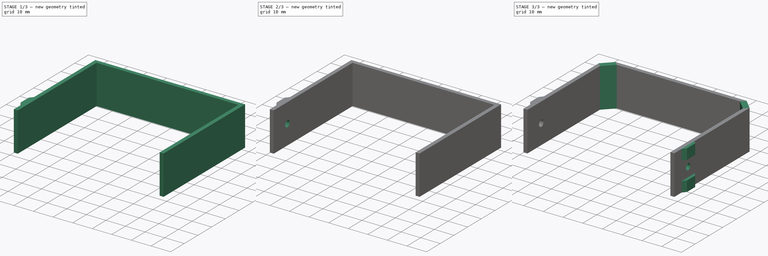
[diagram: build sequence overview — one tinted view per stage of 3, left to right]
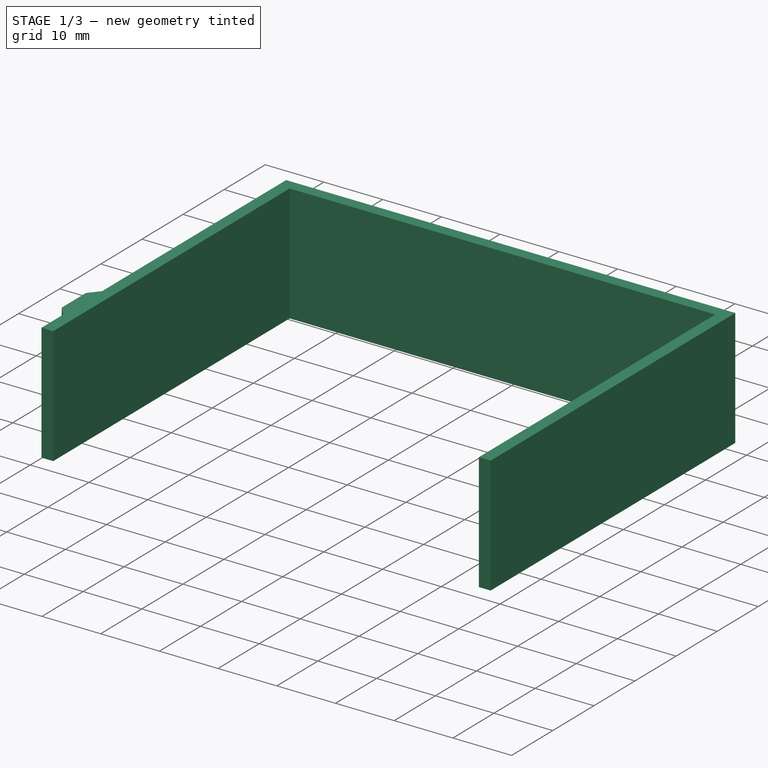
[diagram: stage 1 of 3 — iso view after this stage's code; geometry added in this stage tinted green]
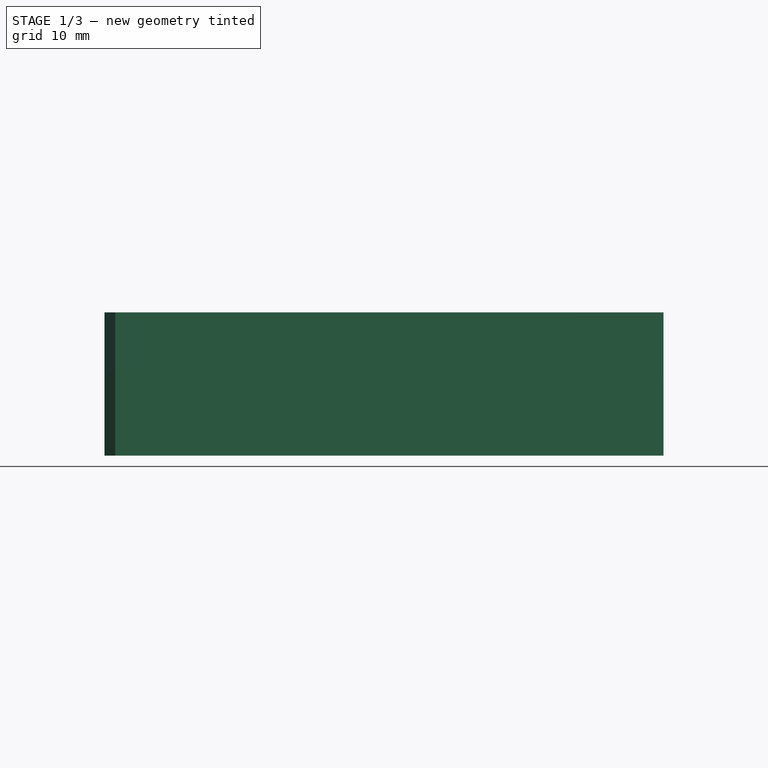
[diagram: stage 1 of 3 — front view after this stage's code; geometry added in this stage tinted green]
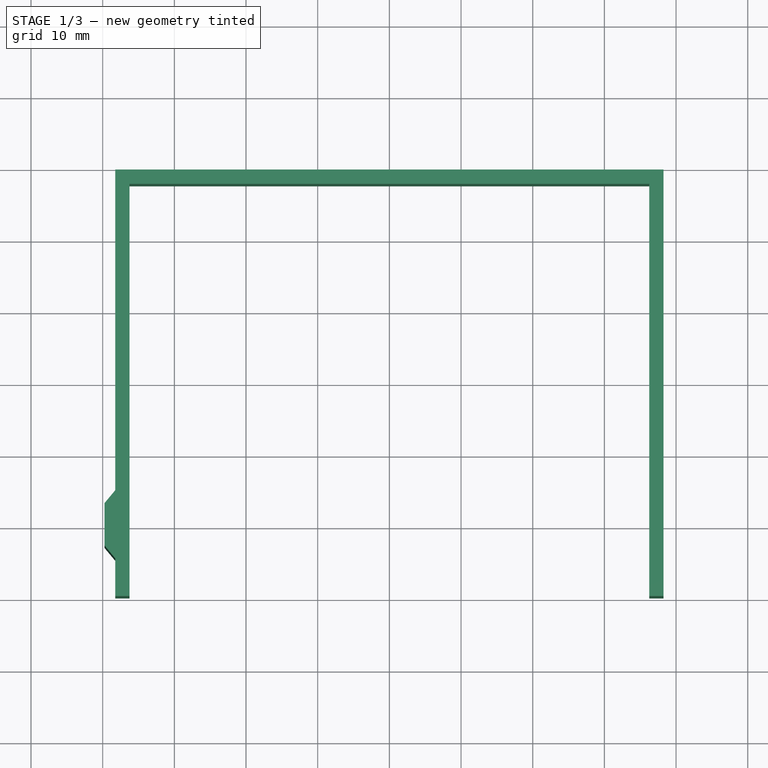
[diagram: stage 1 of 3 — top view after this stage's code; geometry added in this stage tinted green]
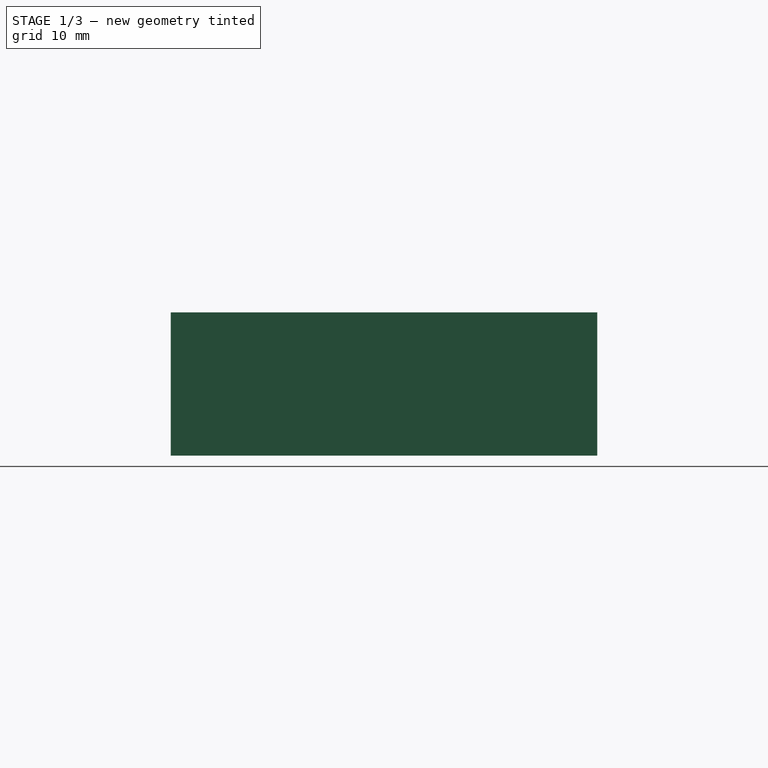
[diagram: stage 1 of 3 — right view after this stage's code; geometry added in this stage tinted green]
FCSTD DOCUMENT  (FreeCAD 0.21R33771 (Git))
Label: suporte-jetson-nano-case
License: All rights reserved
LicenseURL: https://en.wikipedia.org/wiki/All_rights_reserved
objects: Sketcher::SketchObject×4, PartDesign::Pad×2, PartDesign::Pocket×2, PartDesign::Mirrored×1, PartDesign::Chamfer×1, PartDesign::Body×1
note: 16 computed .brp shape members not serialized (recipe doc carries the construction recipe); baked Part::Feature solids carry a one-line shape summary decoded from their .brp

FEATURE [Sketcher::SketchObject] Sketch
  FullyConstrained = true
  MapMode = 5
  Support = -> [XY_Plane]
  sketch-geometry (9):
    g0: LineSegment StartX=-38.25 StartY=-29.75 StartZ=0 EndX=-38.25 EndY=29.75 EndZ=0
    g1: LineSegment StartX=-38.25 StartY=29.75 StartZ=0 EndX=38.25 EndY=29.75 EndZ=0
    g2: LineSegment StartX=38.25 StartY=29.75 StartZ=0 EndX=38.25 EndY=-29.75 EndZ=0
    g3: LineSegment StartX=38.25 StartY=-29.75 StartZ=0 EndX=36.25 EndY=-29.75 EndZ=0
    g4: LineSegment StartX=36.25 StartY=-29.75 StartZ=0 EndX=36.25 EndY=27.75 EndZ=0
    g5: LineSegment StartX=36.25 StartY=27.75 StartZ=0 EndX=-36.25 EndY=27.75 EndZ=0
    g6: LineSegment StartX=-36.25 StartY=27.75 StartZ=0 EndX=-36.25 EndY=-29.75 EndZ=0
    g7: LineSegment StartX=-36.25 StartY=-29.75 StartZ=0 EndX=-38.25 EndY=-29.75 EndZ=0
    g8: LineSegment StartX=-36.25 StartY=27.75 StartZ=0 EndX=-36.25 EndY=29.75 EndZ=0
  constraints (25):
    c: Coincident(g0,g1)
    c: Coincident(g1,g2)
    c: Coincident(g2,g3)
    c: Coincident(g3,g4)
    c: Coincident(g4,g5)
    c: Horizontal(g5)
    c: Coincident(g5,g6)
    c: Coincident(g6,g7)
    c: Coincident(g7,g0)
    c: Horizontal(g7)
    c: Vertical(g6)
    c: Vertical(g4)
    c: Vertical(g2)
    c: Symmetric(g1,g0,g-2)
    c: Symmetric(g0,g0,g-1)
    c: Horizontal(g3)
    c: Coincident(g8,g5)
    c: PointOnObject(g8,g1)
    c: Vertical(g8)
    c: Equal(g3,g7)
    c: Equal(g7,g8)
    c: Equal(g2,g0)
    c: DistanceX(g0,g2) = 76.5
    c: DistanceY(g8,g8) = 2
    c: DistanceY(g6,g5) = 57.5
FEATURE [PartDesign::Pad] Pad
  Direction = (0,0,1)
  Length = 20
  Length2 = 10
  Profile = -> Sketch
  ReferenceAxis = -> Sketch [N_Axis]
  Type = 0
FEATURE [Sketcher::SketchObject] Sketch001
  ExternalGeometry = -> [Pad]
  FullyConstrained = true
  MapMode = 5
  Placement = pos=(0,0,0) rot=(1,0,0;3.14159rad)
  Support = -> [Pad]
  sketch-geometry (6):
    g0: LineSegment StartX=-38.25 StartY=29.75 StartZ=0 EndX=-38.25 EndY=9.75 EndZ=0
    g1: LineSegment StartX=-38.25 StartY=24.5 StartZ=0 EndX=-39.75 EndY=22.7 EndZ=0
    g2: LineSegment StartX=-39.75 StartY=22.7 StartZ=0 EndX=-39.75 EndY=16.8 EndZ=0
    g3: LineSegment StartX=-39.75 StartY=16.8 StartZ=0 EndX=-38.25 EndY=15 EndZ=0
    g4: LineSegment StartX=-38.25 StartY=15 StartZ=0 EndX=-38.25 EndY=24.5 EndZ=0
    g5: LineSegment StartX=-39.75 StartY=19.75 StartZ=0 EndX=-38.25 EndY=19.75 EndZ=0
  constraints (16):
    c: Coincident(g0,g-3)
    c: PointOnObject(g0,g-3)
    c: DistanceY(g0,g0) = 20
    c: Coincident(g1,g2)
    c: Coincident(g2,g3)
    c: Coincident(g3,g4)
    c: Coincident(g4,g1)
    c: PointOnObject(g5,g2)
    c: PointOnObject(g5,g0)
    c: Symmetric(g0,g0,g5)
    c: Symmetric(g1,g3,g5)
    c: Symmetric(g1,g2,g5)
    c: PointOnObject(g1,g0)
    c: DistanceY(g4,g4) = 9.5
    c: DistanceY(g2,g2) = 5.9
    c: DistanceX(g1,g1) = 1.5
FEATURE [PartDesign::Pad] Pad001
  BaseFeature = -> Pad
  Direction = (0,0,-1)
  Length = 10
  Length2 = 10
  Profile = -> Sketch001
  ReferenceAxis = -> Sketch001 [N_Axis]
  Type = 3
  UpToFace = -> Pad [Face10]
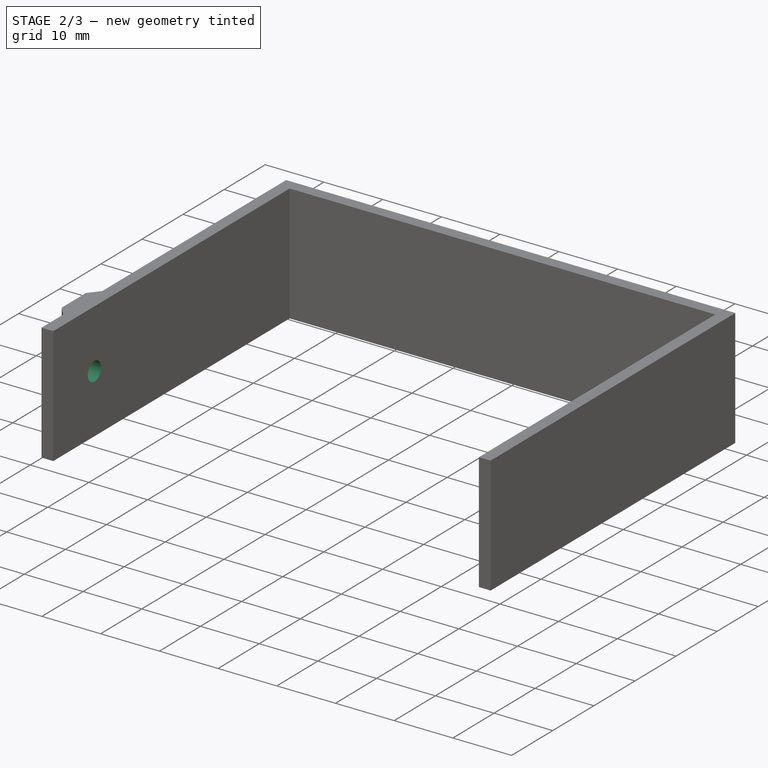
[diagram: stage 2 of 3 — iso view after this stage's code; geometry added in this stage tinted green]
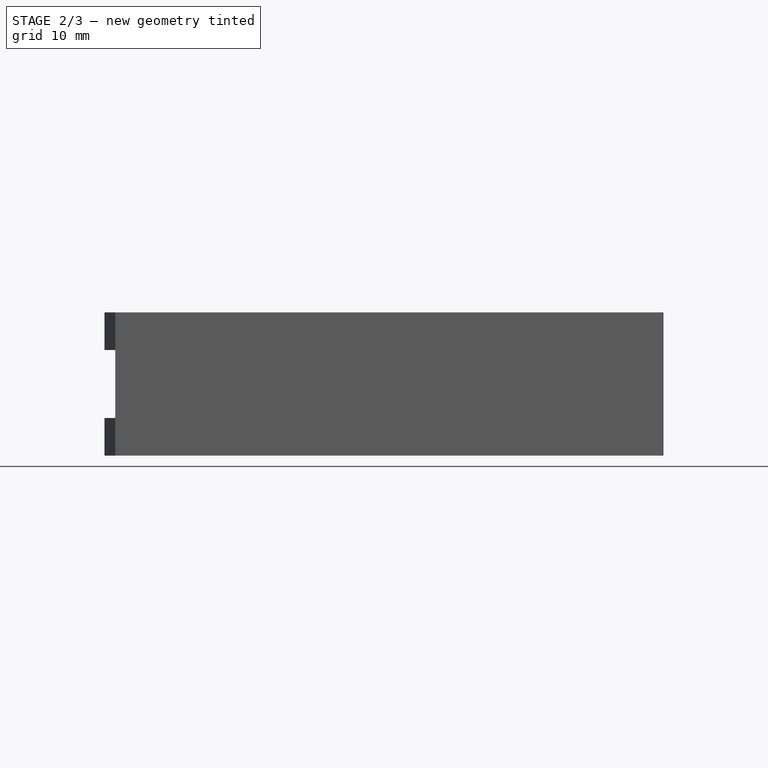
[diagram: stage 2 of 3 — front view after this stage's code; geometry added in this stage tinted green]
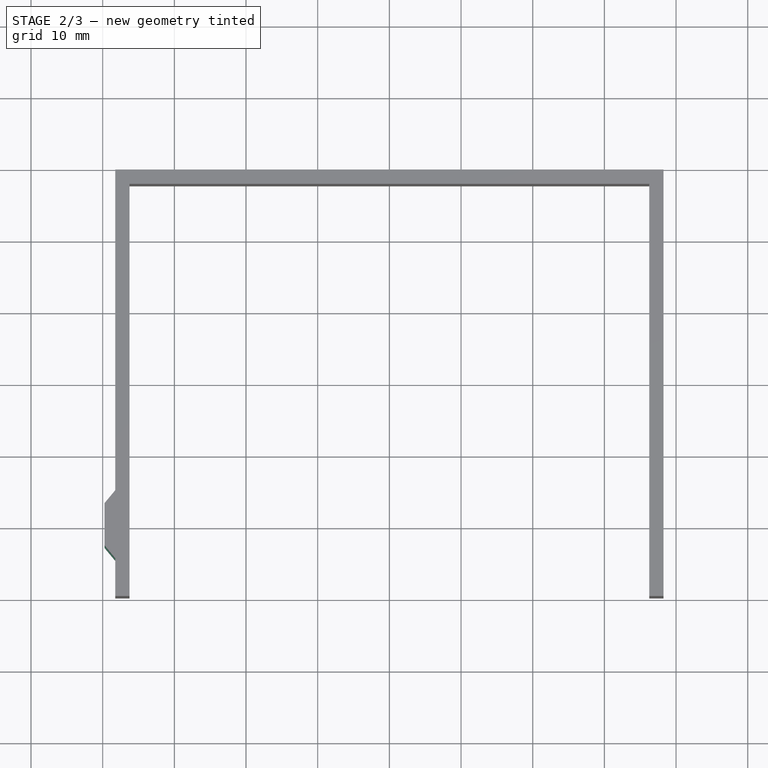
[diagram: stage 2 of 3 — top view after this stage's code; geometry added in this stage tinted green]
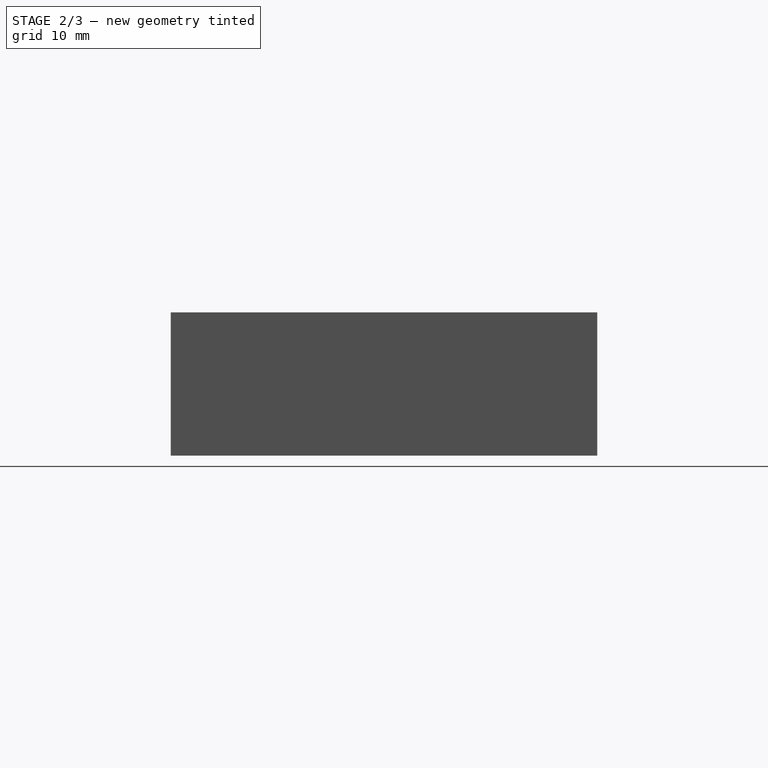
[diagram: stage 2 of 3 — right view after this stage's code; geometry added in this stage tinted green]
FEATURE [Sketcher::SketchObject] Sketch002
  ExternalGeometry = -> [Pad001]
  FullyConstrained = true
  MapMode = 5
  Placement = pos=(-39.75,-3.351e-13,0) rot=(0.57735,-0.57735,-0.57735;2.0944rad)
  Support = -> [Pad001]
  sketch-geometry (3):
    g0: Circle CenterX=19.75 CenterY=10 CenterZ=0 NormalX=0 NormalY=0 NormalZ=1 AngleXU=0 Radius=1.6
    g1: Circle CenterX=19.75 CenterY=10 CenterZ=0 NormalX=0 NormalY=0 NormalZ=1 AngleXU=0 Radius=4.75
    g2: LineSegment StartX=19.75 StartY=10 StartZ=0 EndX=15 EndY=10 EndZ=0
  constraints (7):
    c: Coincident(g1,g0)
    c: Tangent(g1,g-3)
    c: Tangent(g1,g-4)
    c: Coincident(g2,g0)
    c: PointOnObject(g2,g-3)
    c: Symmetric(g-3,g-3,g2)
    c: Diameter(g0) = 3.2
FEATURE [PartDesign::Pocket] Pocket
  BaseFeature = -> Pad001
  Direction = (1,8.4e-15,0)
  Length = 0
  Length2 = 5
  Profile = -> Sketch002
  ReferenceAxis = -> Sketch002 [N_Axis]
  Type = 3
  UpToFace = -> Pad001 [Face13]
FEATURE [Sketcher::SketchObject] Sketch003
  ExternalGeometry = -> [Pocket]
  FullyConstrained = true
  MapMode = 5
  Placement = pos=(-39.75,-3.351e-13,0) rot=(0.57735,-0.57735,-0.57735;2.0944rad)
  Support = -> [Pocket]
  sketch-geometry (5):
    g0: Circle CenterX=19.75 CenterY=10 CenterZ=0 NormalX=0 NormalY=0 NormalZ=1 AngleXU=0 Radius=4.75
    g1: LineSegment StartX=15 StartY=14.75 StartZ=0 EndX=24.5 EndY=14.75 EndZ=0
    g2: LineSegment StartX=24.5 StartY=14.75 StartZ=0 EndX=24.5 EndY=5.25 EndZ=0
    g3: LineSegment StartX=24.5 StartY=5.25 StartZ=0 EndX=15 EndY=5.25 EndZ=0
    g4: LineSegment StartX=15 StartY=5.25 StartZ=0 EndX=15 EndY=14.75 EndZ=0
  constraints (14):
    c: Coincident(g0,g-5)
    c: Tangent(g0,g-3)
    c: Coincident(g1,g2)
    c: Coincident(g2,g3)
    c: Coincident(g3,g4)
    c: Coincident(g4,g1)
    c: Horizontal(g1)
    c: Horizontal(g3)
    c: Vertical(g2)
    c: Vertical(g4)
    c: Tangent(g1,g0)
    c: Tangent(g4,g0)
    c: Tangent(g2,g0)
    c: Tangent(g3,g0)
FEATURE [PartDesign::Pocket] Pocket001
  BaseFeature = -> Pocket
  Direction = (1,8.4e-15,0)
  Length = 0
  Length2 = 5
  Profile = -> Sketch003
  ReferenceAxis = -> Sketch003 [N_Axis]
  Type = 3
  UpToFace = -> Pocket [Face7]
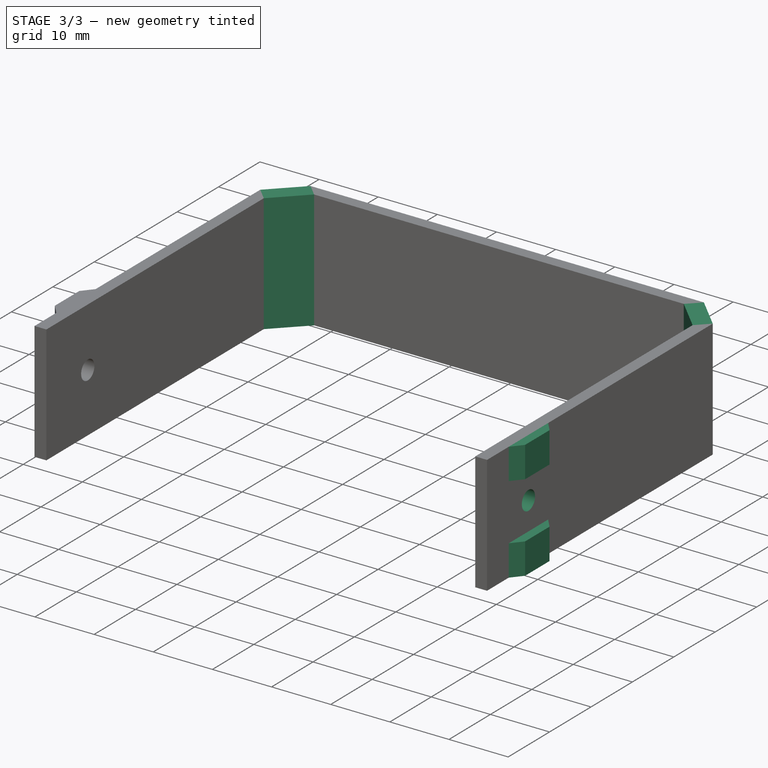
[diagram: stage 3 of 3 — iso view after this stage's code; geometry added in this stage tinted green]
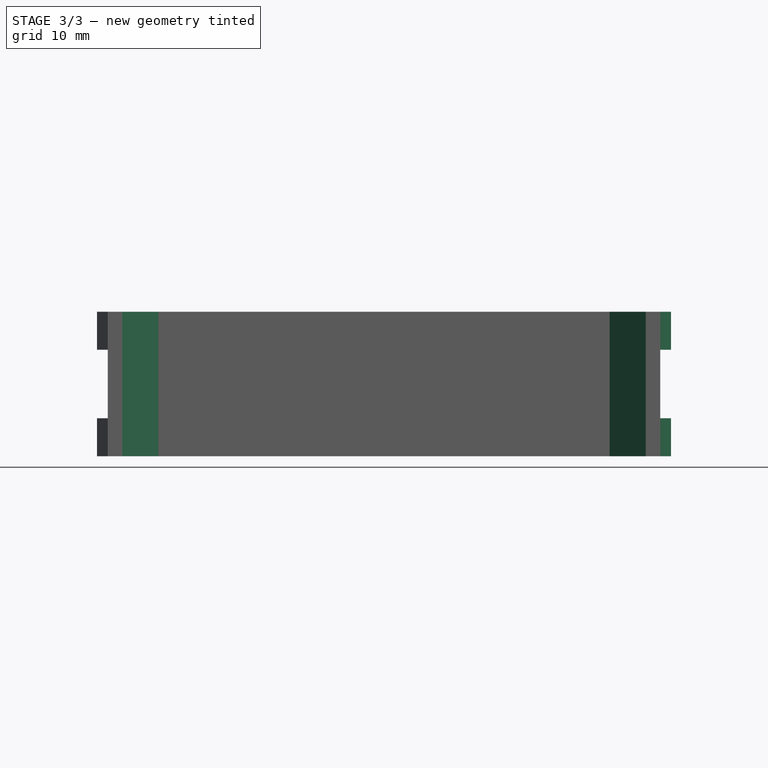
[diagram: stage 3 of 3 — front view after this stage's code; geometry added in this stage tinted green]
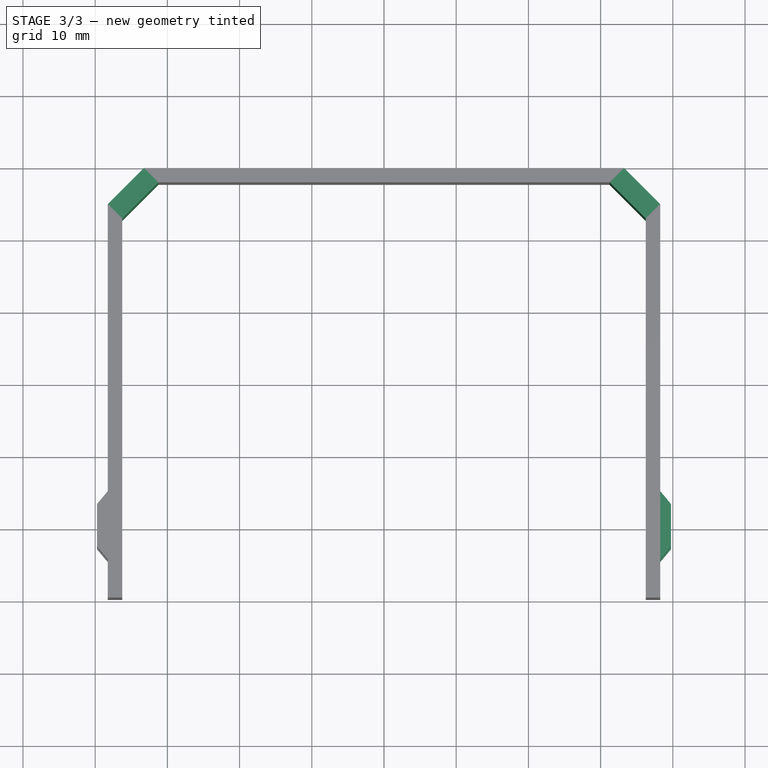
[diagram: stage 3 of 3 — top view after this stage's code; geometry added in this stage tinted green]
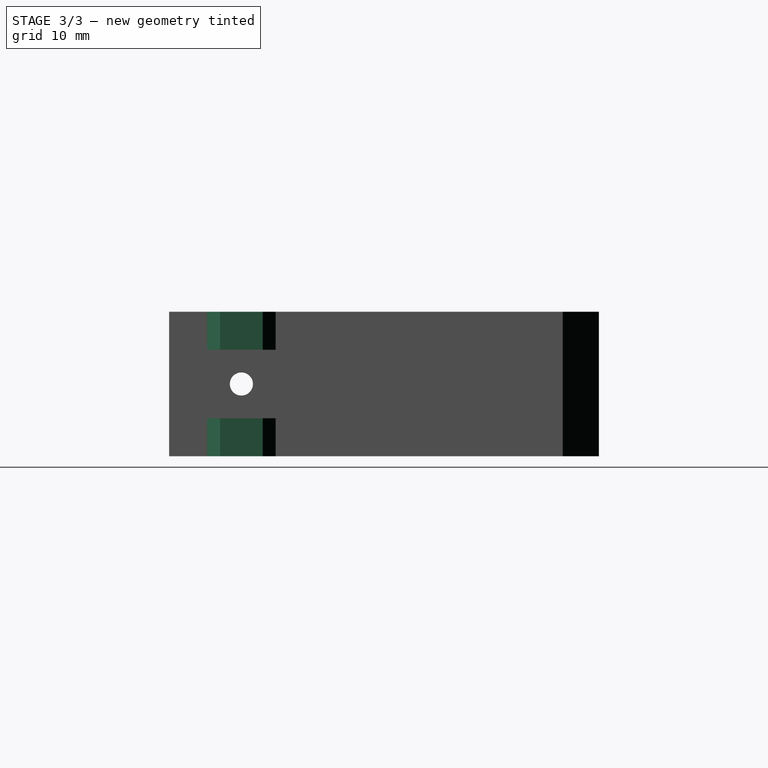
[diagram: stage 3 of 3 — right view after this stage's code; geometry added in this stage tinted green]
FEATURE [PartDesign::Mirrored] Mirrored
  BaseFeature = -> Pocket001
  MirrorPlane = -> YZ_Plane
  Originals = -> [Pad001,Pocket,Pocket001]
FEATURE [PartDesign::Chamfer] Chamfer
  Angle = 45
  Base = -> Mirrored [Edge57,Edge59,Edge42,Edge45]
  BaseFeature = -> Mirrored
  ChamferType = 0
  FlipDirection = false
  Size = 5
  Size2 = 1
  SupportTransform = false
  UseAllEdges = false
FEATURE [PartDesign::Body] Body
  Group = -> [Sketch,Pad,Sketch001,Pad001,Sketch002,Pocket,Sketch003,Pocket001,Mirrored,Chamfer]
  Origin = -> Origin
  Tip = -> Chamfer
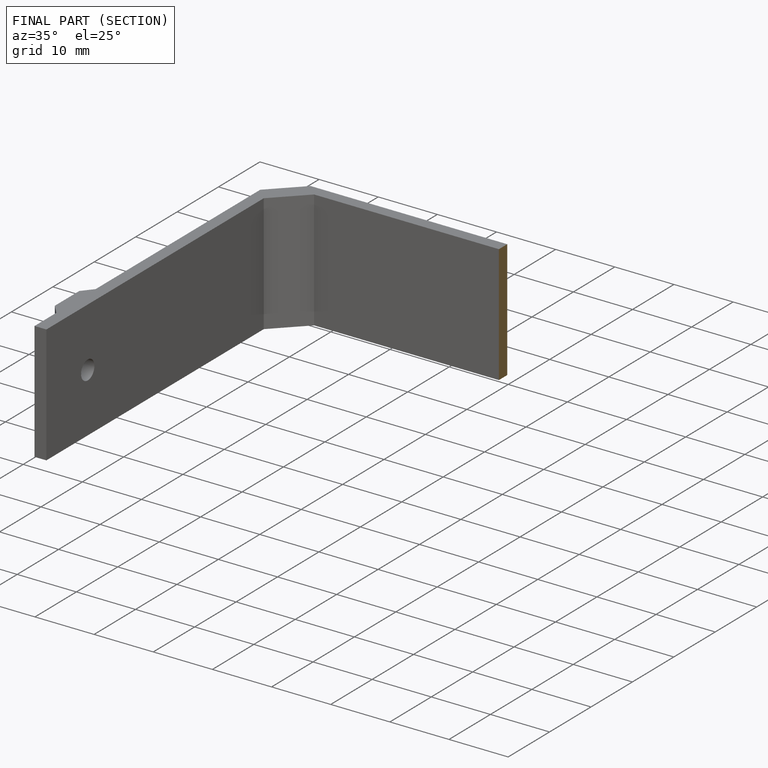
[diagram: finished part — half-section view (interior)]
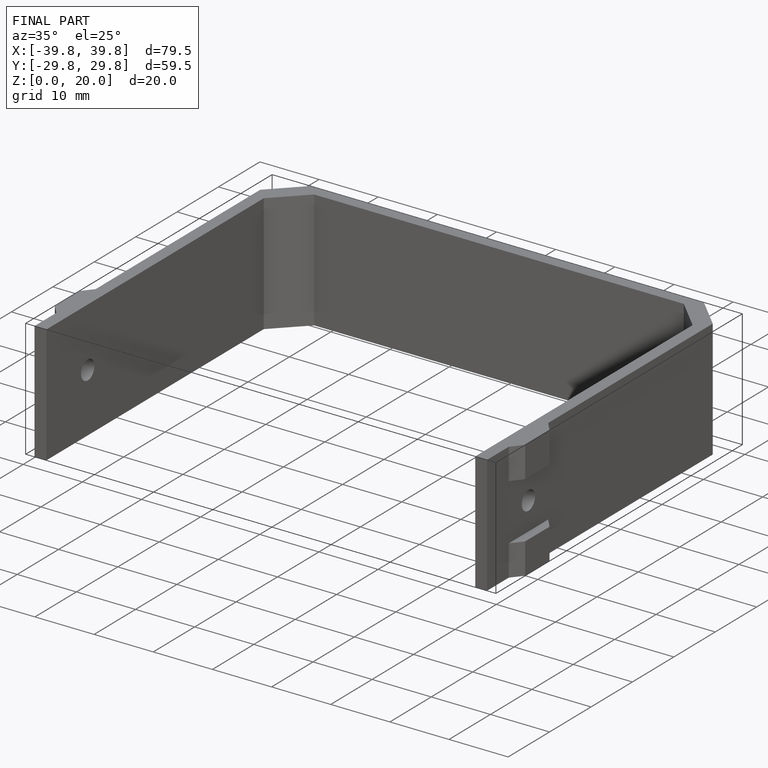
[diagram: finished part — iso view with bounding-box wireframe]
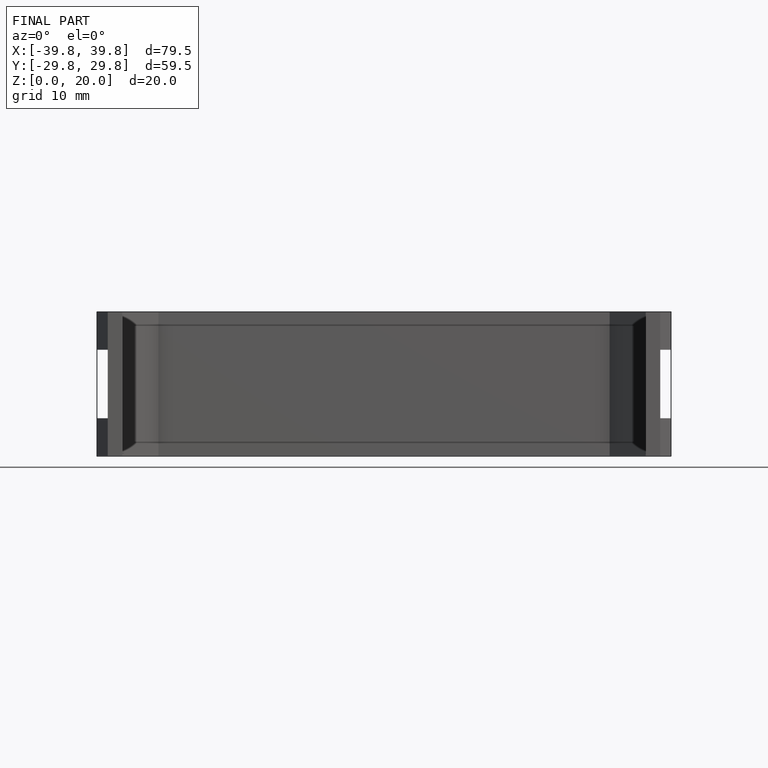
[diagram: finished part — front view with bounding-box wireframe]
